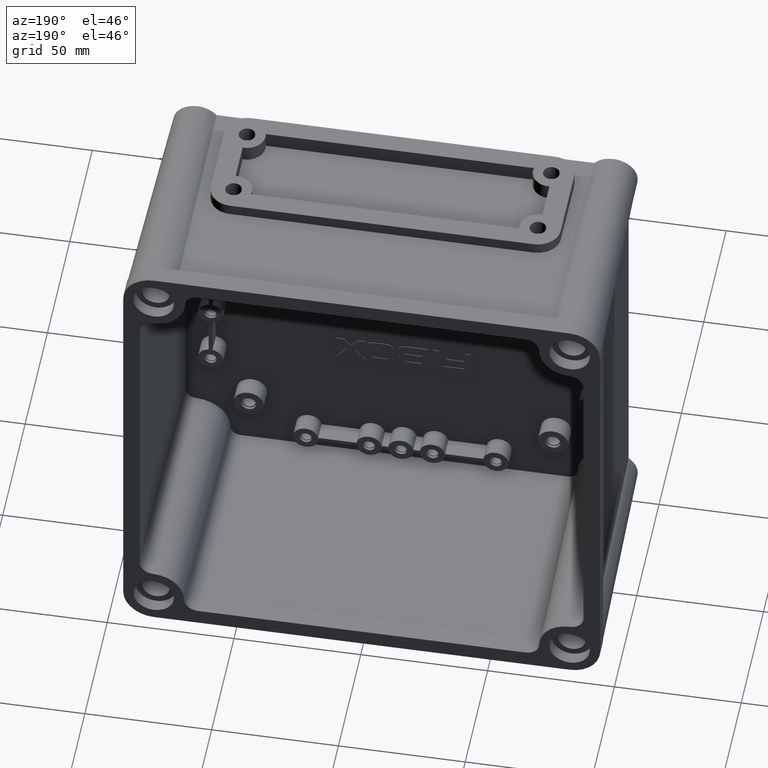
[diagram: clean part render]
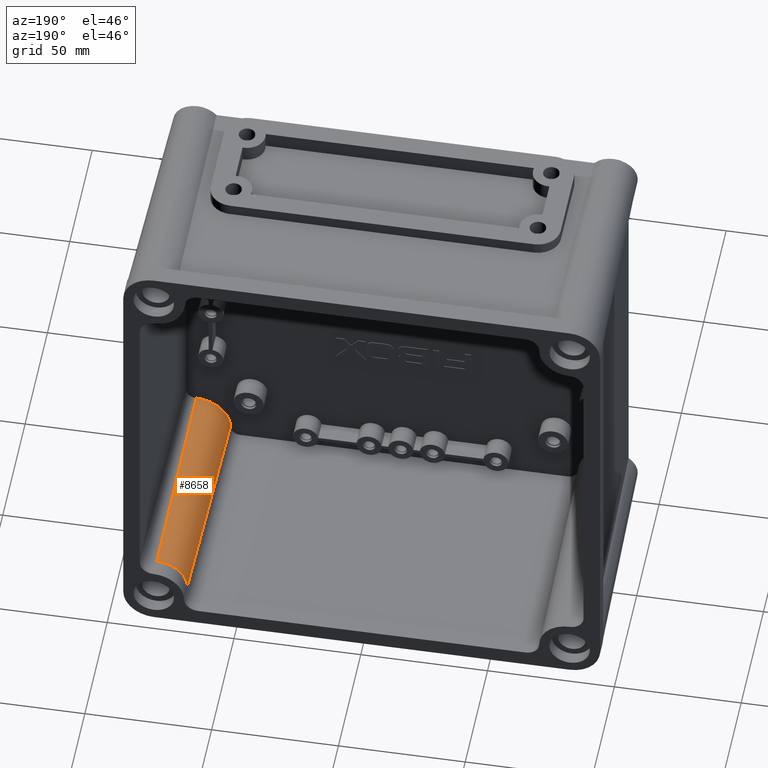
[diagram: same view with one face highlighted and labeled with its STEP entity id]
A machine part, auxiliary view. The second image highlights one B-rep face of the part: STEP entity #8658.
In plain terms, the highlighted conical surface has half-angle 1 deg.
Its self-contained STEP definition (entity closure, byte-faithful):
#1311 = CARTESIAN_POINT ( 'NONE',  ( 68.46395428631684900, 3.000000000000002700, -81.99999999999997200 ) ) ;
#1313 = CARTESIAN_POINT ( 'NONE',  ( 82.00000000000000000, 3.000000000000002700, -68.46395428631682000 ) ) ;
#1330 = DIRECTION ( 'NONE',  ( 0.0000000000000000000, 0.0000000000000000000, 1.000000000000000000 ) ) ;
#1331 = DIRECTION ( 'NONE',  ( 0.0000000000000000000, 1.000000000000000000, 0.0000000000000000000 ) ) ;
#1332 = CARTESIAN_POINT ( 'NONE',  ( 82.00000000000000000, 3.000000000000002700, -81.99999999999997200 ) ) ;
#1342 = CIRCLE ( 'NONE', #1349, 13.53604571368315100 ) ;
#1349 = AXIS2_PLACEMENT_3D ( 'NONE', #1332, #1331, #1330 ) ;
#2151 = CARTESIAN_POINT ( 'NONE',  ( 82.00000000000000000, 91.00000000000000000, -69.99999999999998600 ) ) ;
#2161 = CIRCLE ( 'NONE', #2205, 12.00000000000001100 ) ;
#2173 = CARTESIAN_POINT ( 'NONE',  ( 70.00000000000000000, 91.00000000000000000, -81.99999999999997200 ) ) ;
#2202 = DIRECTION ( 'NONE',  ( 0.0000000000000000000, 0.0000000000000000000, 1.000000000000000000 ) ) ;
#2203 = DIRECTION ( 'NONE',  ( -0.0000000000000000000, -1.000000000000000000, -0.0000000000000000000 ) ) ;
#2204 = CARTESIAN_POINT ( 'NONE',  ( 82.00000000000000000, 91.00000000000000000, -81.99999999999997200 ) ) ;
#2205 = AXIS2_PLACEMENT_3D ( 'NONE', #2204, #2203, #2202 ) ;
#2295 = VERTEX_POINT ( 'NONE', #1311 ) ;
#2305 = VERTEX_POINT ( 'NONE', #1313 ) ;
#2438 = EDGE_CURVE ( 'NONE', #2295, #2305, #1342, .T. ) ;
#4156 = LINE ( 'NONE', #4204, #4202 ) ;
#4201 = DIRECTION ( 'NONE',  ( 0.01745240643728355000, 0.9998476951563911600, -0.0000000000000000000 ) ) ;
#4202 = VECTOR ( 'NONE', #4201, 1000.000000000000200 ) ;
#4204 = CARTESIAN_POINT ( 'NONE',  ( 70.00000000000000000, 91.00000000000000000, -81.99999999999997200 ) ) ;
#4237 = DIRECTION ( 'NONE',  ( -0.0000000000000000000, 0.9998476951563911600, -0.01745240643728355000 ) ) ;
#4238 = VECTOR ( 'NONE', #4237, 1000.000000000000200 ) ;
#4242 = CARTESIAN_POINT ( 'NONE',  ( 82.00000000000000000, 91.00000000000000000, -69.99999999999998600 ) ) ;
#4251 = LINE ( 'NONE', #4242, #4238 ) ;
#4303 = DIRECTION ( 'NONE',  ( 0.0000000000000000000, 0.0000000000000000000, 1.000000000000000000 ) ) ;
#4304 = DIRECTION ( 'NONE',  ( 0.0000000000000000000, -1.000000000000000000, 0.0000000000000000000 ) ) ;
#4305 = CARTESIAN_POINT ( 'NONE',  ( 82.00000000000000000, 91.00000000000000000, -81.99999999999997200 ) ) ;
#4318 = CONICAL_SURFACE ( 'NONE', #4322, 11.99999999999999600, 0.01745329251994333400 ) ;
#4321 = FACE_OUTER_BOUND ( 'NONE', #8554, .T. ) ;
#4322 = AXIS2_PLACEMENT_3D ( 'NONE', #4305, #4304, #4303 ) ;
#6840 = VERTEX_POINT ( 'NONE', #2173 ) ;
#6888 = VERTEX_POINT ( 'NONE', #2151 ) ;
#6889 = EDGE_CURVE ( 'NONE', #6888, #6840, #2161, .T. ) ;
#8549 = ORIENTED_EDGE ( 'NONE', *, *, #2438, .T. ) ;
#8554 = EDGE_LOOP ( 'NONE', ( #8549, #8561, #8586, #8635 ) ) ;
#8555 = EDGE_CURVE ( 'NONE', #2295, #6840, #4156, .T. ) ;
#8561 = ORIENTED_EDGE ( 'NONE', *, *, #8576, .T. ) ;
#8576 = EDGE_CURVE ( 'NONE', #2305, #6888, #4251, .T. ) ;
#8586 = ORIENTED_EDGE ( 'NONE', *, *, #6889, .T. ) ;
#8635 = ORIENTED_EDGE ( 'NONE', *, *, #8555, .F. ) ;
#8658 = ADVANCED_FACE ( 'NONE', ( #4321 ), #4318, .T. ) ;